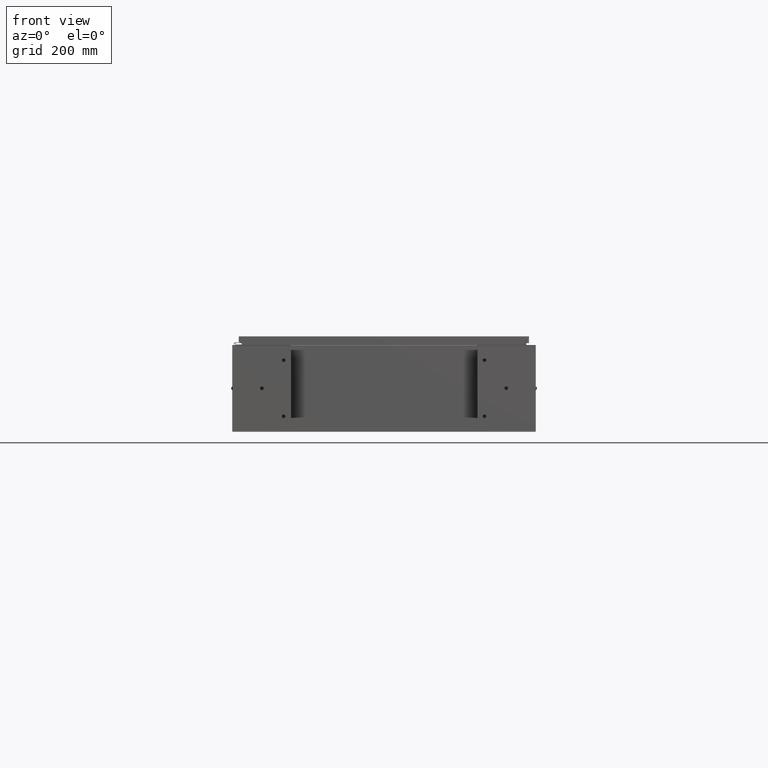
[diagram: clean part render]
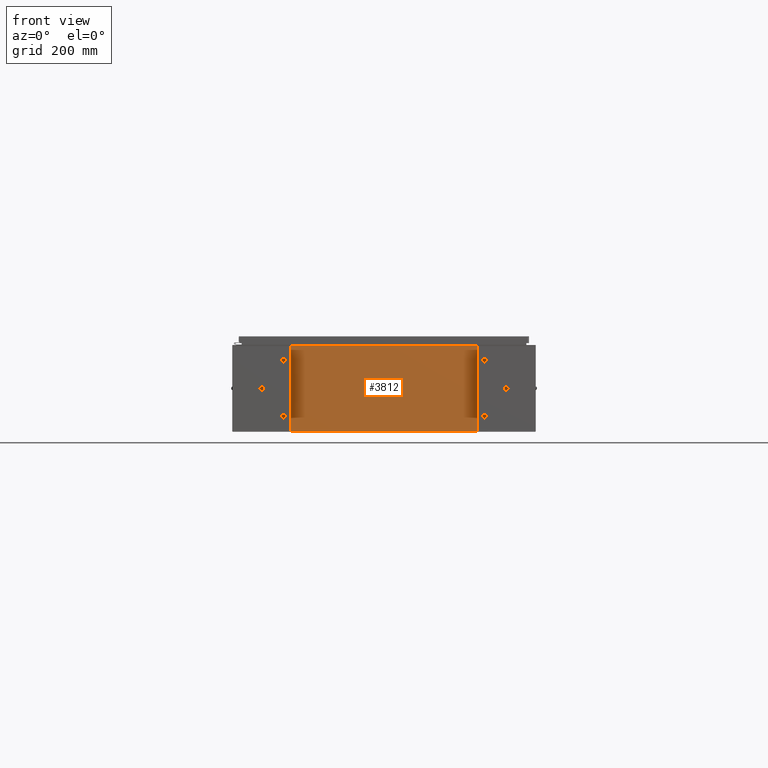
[diagram: same view with one face highlighted and labeled with its STEP entity id]
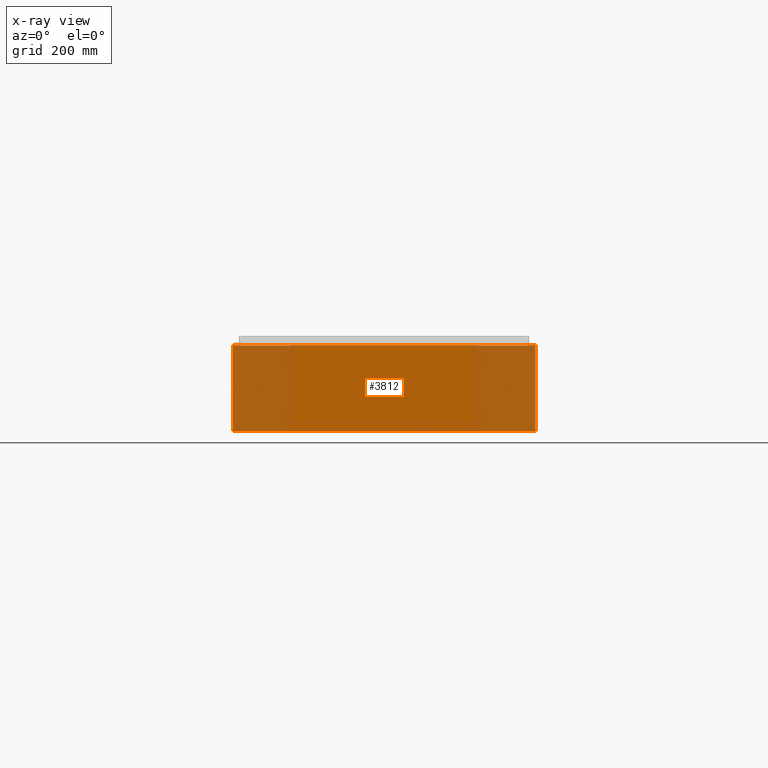
[diagram: x-ray of the same camera — body ghosted, the highlighted face saturated]
A machine part, front view. The second image highlights one B-rep face of the part: STEP entity #3812.
The next image is the same camera in x-ray: the body ghosted, the highlighted face saturated — about 38% of this face is hidden behind the body in this view.
In plain terms, the highlighted planar face has unit normal (-0, 1, -0).
Its self-contained STEP definition (entity closure, byte-faithful):
#39 = LINE ( 'NONE', #5003, #11266 ) ;
#151 = DIRECTION ( 'NONE',  ( 1.000000000000000000, 0.0000000000000000000, 0.0000000000000000000 ) ) ;
#2318 = CARTESIAN_POINT ( 'NONE',  ( -19.67455000000000400, 0.0000000000000000000, 5.925300000000000000 ) ) ;
#3812 = ADVANCED_FACE ( 'NONE', ( #50766 ), #33577, .F. ) ;
#3818 = VERTEX_POINT ( 'NONE', #30483 ) ;
#4523 = EDGE_LOOP ( 'NONE', ( #59984, #10610, #69496, #30345, #69735, #23307, #11607, #10168, #56328, #24338, #35135, #35770 ) ) ;
#5003 = CARTESIAN_POINT ( 'NONE',  ( -20.92530000000000400, 0.0000000000000000000, 5.925300000000000000 ) ) ;
#5216 = VERTEX_POINT ( 'NONE', #10836 ) ;
#5623 = EDGE_CURVE ( 'NONE', #48402, #5216, #25211, .T. ) ;
#5823 = VECTOR ( 'NONE', #56973, 39.37007874015748100 ) ;
#6008 = DIRECTION ( 'NONE',  ( 0.0000000000000000000, 0.0000000000000000000, 1.000000000000000000 ) ) ;
#7705 = AXIS2_PLACEMENT_3D ( 'NONE', #11256, #69121, #37670 ) ;
#8824 = VERTEX_POINT ( 'NONE', #49554 ) ;
#10168 = ORIENTED_EDGE ( 'NONE', *, *, #65203, .T. ) ;
#10610 = ORIENTED_EDGE ( 'NONE', *, *, #40277, .F. ) ;
#10836 = CARTESIAN_POINT ( 'NONE',  ( 19.63720000000000400, 0.0000000000000000000, 5.912300000000000100 ) ) ;
#11256 = CARTESIAN_POINT ( 'NONE',  ( 0.0000000000000000000, 0.0000000000000000000, 0.0000000000000000000 ) ) ;
#11266 = VECTOR ( 'NONE', #32312, 39.37007874015748100 ) ;
#11387 = CARTESIAN_POINT ( 'NONE',  ( -19.65587500000000500, 0.0000000000000000000, 5.874950000000000100 ) ) ;
#11478 = CIRCLE ( 'NONE', #64314, 0.01867499999999949400 ) ;
#11607 = ORIENTED_EDGE ( 'NONE', *, *, #64159, .F. ) ;
#11809 = CARTESIAN_POINT ( 'NONE',  ( 20.92530000000000400, 0.0000000000000000000, -5.925300000000000000 ) ) ;
#12002 = CIRCLE ( 'NONE', #21898, 0.01867499999999949400 ) ;
#12927 = EDGE_CURVE ( 'NONE', #66319, #5216, #68781, .T. ) ;
#15922 = LINE ( 'NONE', #21848, #59589 ) ;
#16574 = CARTESIAN_POINT ( 'NONE',  ( -20.92530000000000400, 0.0000000000000000000, 5.925300000000000000 ) ) ;
#16931 = DIRECTION ( 'NONE',  ( 0.0000000000000000000, 0.0000000000000000000, -1.000000000000000000 ) ) ;
#18272 = DIRECTION ( 'NONE',  ( 1.000000000000000000, 0.0000000000000000000, 0.0000000000000000000 ) ) ;
#18320 = LINE ( 'NONE', #38978, #61990 ) ;
#18932 = LINE ( 'NONE', #37064, #44645 ) ;
#21815 = LINE ( 'NONE', #41674, #49271 ) ;
#21848 = CARTESIAN_POINT ( 'NONE',  ( -20.92530000000000400, 0.0000000000000000000, -5.925300000000000000 ) ) ;
#21898 = AXIS2_PLACEMENT_3D ( 'NONE', #61941, #29043, #67563 ) ;
#22949 = LINE ( 'NONE', #16574, #48705 ) ;
#23307 = ORIENTED_EDGE ( 'NONE', *, *, #57597, .F. ) ;
#23783 = CARTESIAN_POINT ( 'NONE',  ( -19.63720000000000400, -0.0000000000000000000, 0.0000000000000000000 ) ) ;
#24338 = ORIENTED_EDGE ( 'NONE', *, *, #49034, .T. ) ;
#24837 = VECTOR ( 'NONE', #28912, 39.37007874015748100 ) ;
#25211 = LINE ( 'NONE', #29404, #38317 ) ;
#28251 = VERTEX_POINT ( 'NONE', #30071 ) ;
#28912 = DIRECTION ( 'NONE',  ( 0.0000000000000000000, 0.0000000000000000000, 1.000000000000000000 ) ) ;
#29043 = DIRECTION ( 'NONE',  ( -0.0000000000000000000, 1.000000000000000000, -0.0000000000000000000 ) ) ;
#29175 = VECTOR ( 'NONE', #32338, 39.37007874015748100 ) ;
#29404 = CARTESIAN_POINT ( 'NONE',  ( -19.63720000000000400, -7.171100983368691200E-016, 5.912300000000000100 ) ) ;
#30037 = VERTEX_POINT ( 'NONE', #43972 ) ;
#30071 = CARTESIAN_POINT ( 'NONE',  ( 20.92530000000000400, 0.0000000000000000000, 5.925300000000000000 ) ) ;
#30345 = ORIENTED_EDGE ( 'NONE', *, *, #5623, .T. ) ;
#30483 = CARTESIAN_POINT ( 'NONE',  ( -20.92530000000000400, 0.0000000000000000000, 5.925300000000000000 ) ) ;
#30921 = LINE ( 'NONE', #59656, #29175 ) ;
#31476 = CARTESIAN_POINT ( 'NONE',  ( 19.63720000000000400, 0.0000000000000000000, 0.0000000000000000000 ) ) ;
#32312 = DIRECTION ( 'NONE',  ( 1.000000000000000000, 0.0000000000000000000, 0.0000000000000000000 ) ) ;
#32338 = DIRECTION ( 'NONE',  ( 0.0000000000000000000, 0.0000000000000000000, -1.000000000000000000 ) ) ;
#32419 = EDGE_CURVE ( 'NONE', #28251, #42934, #30921, .T. ) ;
#33501 = CARTESIAN_POINT ( 'NONE',  ( 19.67455000000000400, 0.0000000000000000000, 5.874950000000000100 ) ) ;
#33577 = PLANE ( 'NONE',  #7705 ) ;
#35135 = ORIENTED_EDGE ( 'NONE', *, *, #59077, .T. ) ;
#35770 = ORIENTED_EDGE ( 'NONE', *, *, #61498, .T. ) ;
#36856 = LINE ( 'NONE', #23783, #5823 ) ;
#37064 = CARTESIAN_POINT ( 'NONE',  ( 19.67455000000076700, 0.0000000000000000000, 2.561964485898667500E-012 ) ) ;
#37670 = DIRECTION ( 'NONE',  ( 0.0000000000000000000, -0.0000000000000000000, -1.000000000000000000 ) ) ;
#38031 = CARTESIAN_POINT ( 'NONE',  ( 19.63720000000000400, 0.0000000000000000000, 5.874950000000000100 ) ) ;
#38317 = VECTOR ( 'NONE', #18272, 39.37007874015748100 ) ;
#38504 = EDGE_CURVE ( 'NONE', #30037, #45047, #18320, .T. ) ;
#38978 = CARTESIAN_POINT ( 'NONE',  ( -19.67455000000000400, -0.0000000000000000000, 0.0000000000000000000 ) ) ;
#40277 = EDGE_CURVE ( 'NONE', #50662, #30037, #11478, .T. ) ;
#41674 = CARTESIAN_POINT ( 'NONE',  ( -20.92530000000000400, 0.0000000000000000000, 5.925300000000000000 ) ) ;
#42934 = VERTEX_POINT ( 'NONE', #11809 ) ;
#43972 = CARTESIAN_POINT ( 'NONE',  ( -19.67455000000000400, 0.0000000000000000000, 5.874950000000000100 ) ) ;
#44645 = VECTOR ( 'NONE', #69863, 39.37007874015748100 ) ;
#45047 = VERTEX_POINT ( 'NONE', #2318 ) ;
#47775 = CARTESIAN_POINT ( 'NONE',  ( -19.63720000000000400, -0.0000000000000000000, 5.874950000000000100 ) ) ;
#48402 = VERTEX_POINT ( 'NONE', #66418 ) ;
#48705 = VECTOR ( 'NONE', #151, 39.37007874015748100 ) ;
#49034 = EDGE_CURVE ( 'NONE', #42934, #68394, #15922, .T. ) ;
#49188 = DIRECTION ( 'NONE',  ( -1.000000000000000000, -0.0000000000000000000, -0.0000000000000000000 ) ) ;
#49271 = VECTOR ( 'NONE', #52374, 39.37007874015748100 ) ;
#49554 = CARTESIAN_POINT ( 'NONE',  ( 19.67454999999998200, 0.0000000000000000000, 5.925300000000000000 ) ) ;
#49634 = DIRECTION ( 'NONE',  ( -0.0000000000000000000, 1.000000000000000000, -0.0000000000000000000 ) ) ;
#50662 = VERTEX_POINT ( 'NONE', #47775 ) ;
#50766 = FACE_OUTER_BOUND ( 'NONE', #4523, .T. ) ;
#51297 = CARTESIAN_POINT ( 'NONE',  ( -20.92530000000000400, 0.0000000000000000000, -5.925300000000000000 ) ) ;
#52374 = DIRECTION ( 'NONE',  ( -0.0000000000000000000, -0.0000000000000000000, 1.000000000000000000 ) ) ;
#56328 = ORIENTED_EDGE ( 'NONE', *, *, #32419, .T. ) ;
#56973 = DIRECTION ( 'NONE',  ( 0.0000000000000000000, 0.0000000000000000000, -1.000000000000000000 ) ) ;
#57463 = VERTEX_POINT ( 'NONE', #33501 ) ;
#57597 = EDGE_CURVE ( 'NONE', #57463, #66319, #12002, .T. ) ;
#59077 = EDGE_CURVE ( 'NONE', #68394, #3818, #21815, .T. ) ;
#59589 = VECTOR ( 'NONE', #49188, 39.37007874015748100 ) ;
#59656 = CARTESIAN_POINT ( 'NONE',  ( 20.92530000000000400, 0.0000000000000000000, 5.925300000000000000 ) ) ;
#59984 = ORIENTED_EDGE ( 'NONE', *, *, #38504, .F. ) ;
#61498 = EDGE_CURVE ( 'NONE', #3818, #45047, #39, .T. ) ;
#61941 = CARTESIAN_POINT ( 'NONE',  ( 19.65587500000000500, 0.0000000000000000000, 5.874950000000000100 ) ) ;
#61990 = VECTOR ( 'NONE', #6008, 39.37007874015748100 ) ;
#64159 = EDGE_CURVE ( 'NONE', #8824, #57463, #18932, .T. ) ;
#64314 = AXIS2_PLACEMENT_3D ( 'NONE', #11387, #49634, #16931 ) ;
#65203 = EDGE_CURVE ( 'NONE', #8824, #28251, #22949, .T. ) ;
#65352 = EDGE_CURVE ( 'NONE', #48402, #50662, #36856, .T. ) ;
#66319 = VERTEX_POINT ( 'NONE', #38031 ) ;
#66418 = CARTESIAN_POINT ( 'NONE',  ( -19.63720000000000400, -7.171100983368691200E-016, 5.912300000000000100 ) ) ;
#67563 = DIRECTION ( 'NONE',  ( 0.0000000000000000000, 0.0000000000000000000, -1.000000000000000000 ) ) ;
#68394 = VERTEX_POINT ( 'NONE', #51297 ) ;
#68781 = LINE ( 'NONE', #31476, #24837 ) ;
#69121 = DIRECTION ( 'NONE',  ( 0.0000000000000000000, -1.000000000000000000, 0.0000000000000000000 ) ) ;
#69496 = ORIENTED_EDGE ( 'NONE', *, *, #65352, .F. ) ;
#69735 = ORIENTED_EDGE ( 'NONE', *, *, #12927, .F. ) ;
#69863 = DIRECTION ( 'NONE',  ( 1.302171834120001500E-013, 0.0000000000000000000, -1.000000000000000000 ) ) ;